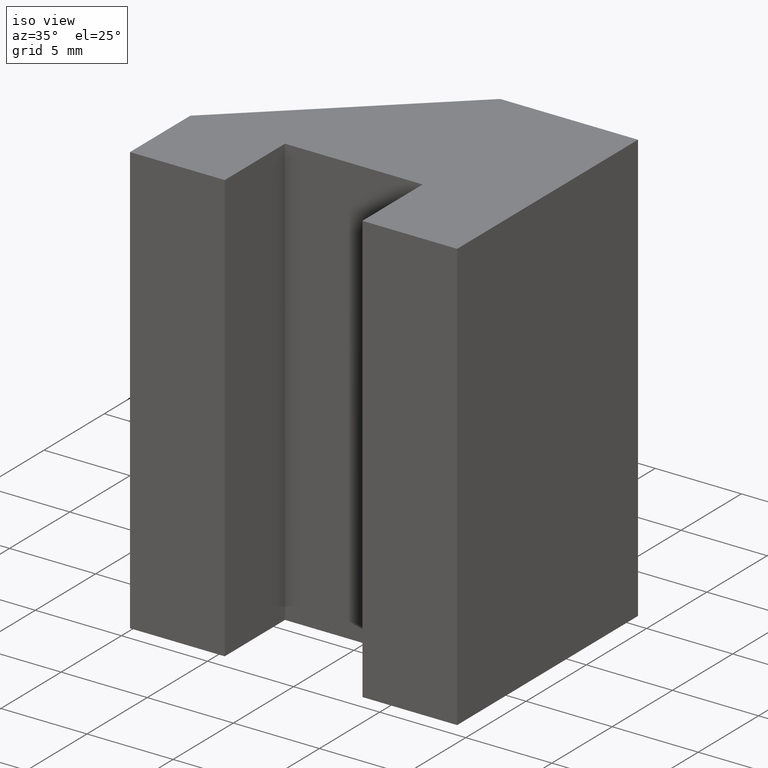
[diagram: clean part render]
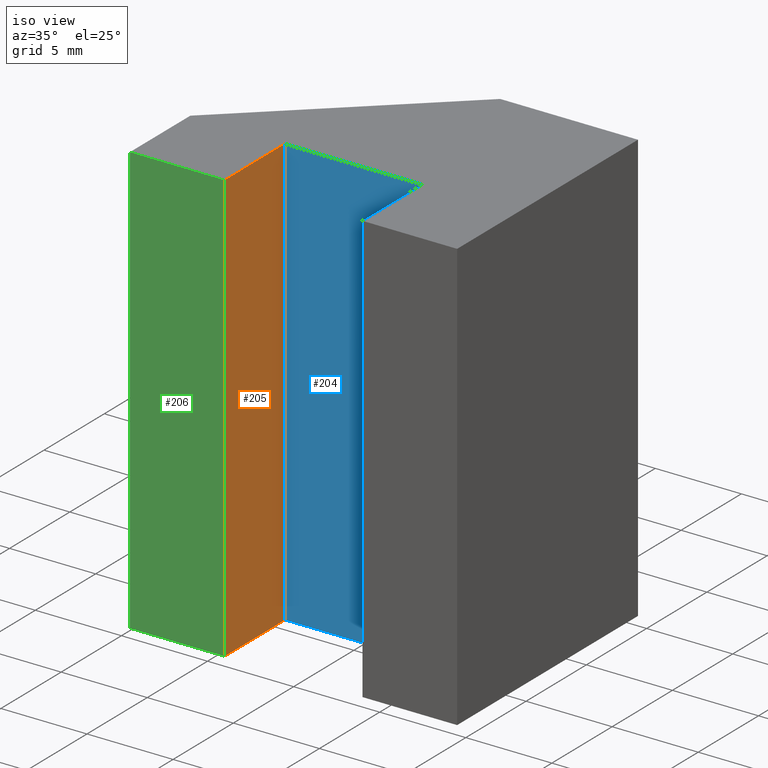
[diagram: same view with three faces highlighted in distinct colors, each labeled with its STEP entity id]
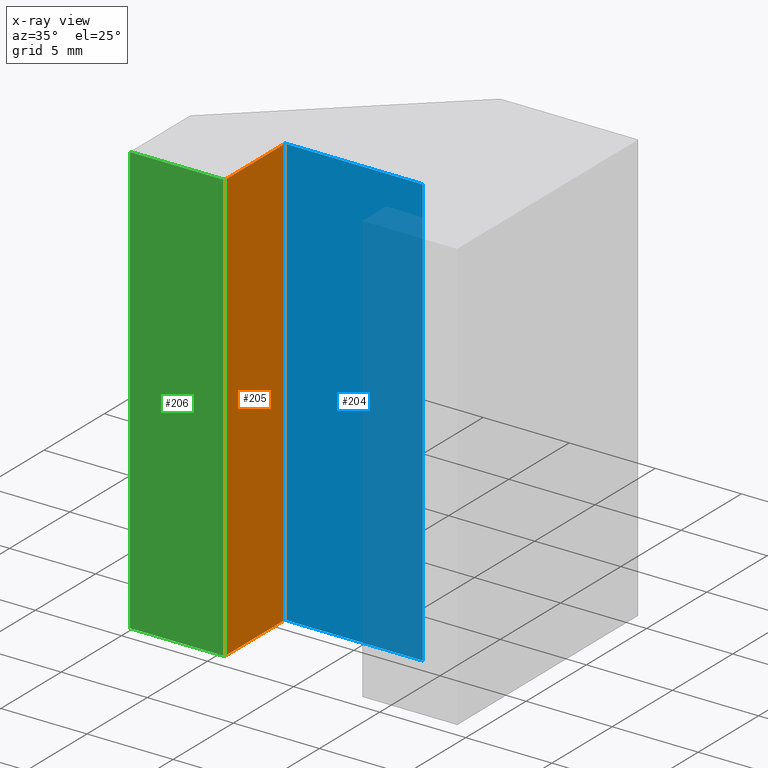
[diagram: x-ray of the same camera — body ghosted, the three highlighted faces saturated]
A machine part, iso view with three faces highlighted in distinct colors.
The next image is the same camera in x-ray (body ghosted, the three faces saturated) — at least one of them is partly hidden behind the body in this view.
Their STEP definitions:

[orange] entity #205 — the highlighted planar face has unit normal (1, 0, 0).
#19=FACE_OUTER_BOUND('',#30,.T.);
#30=EDGE_LOOP('',(#154,#155,#156,#157));
#42=LINE('',#310,#69);
#51=LINE('',#327,#78);
#52=LINE('',#330,#79);
#53=LINE('',#331,#80);
#69=VECTOR('',#255,10.);
#78=VECTOR('',#268,10.);
#79=VECTOR('',#271,10.);
#80=VECTOR('',#272,10.);
#96=VERTEX_POINT('',#307);
#97=VERTEX_POINT('',#309);
#103=VERTEX_POINT('',#325);
#104=VERTEX_POINT('',#329);
#114=EDGE_CURVE('',#97,#96,#42,.T.);
#123=EDGE_CURVE('',#103,#96,#51,.T.);
#124=EDGE_CURVE('',#103,#104,#52,.T.);
#125=EDGE_CURVE('',#104,#97,#53,.T.);
#154=ORIENTED_EDGE('',*,*,#124,.T.);
#155=ORIENTED_EDGE('',*,*,#125,.T.);
#156=ORIENTED_EDGE('',*,*,#114,.T.);
#157=ORIENTED_EDGE('',*,*,#123,.F.);
#194=PLANE('',#239);
#205=ADVANCED_FACE('',(#19),#194,.T.);
#239=AXIS2_PLACEMENT_3D('',#328,#269,#270);
#255=DIRECTION('',(-4.44089209850063E-16,1.,0.));
#268=DIRECTION('',(0.,0.,-1.));
#269=DIRECTION('center_axis',(1.,4.44089209850063E-16,0.));
#270=DIRECTION('ref_axis',(0.,0.,-1.));
#271=DIRECTION('',(4.44089209850063E-16,-1.,0.));
#272=DIRECTION('',(0.,0.,-1.));
#307=CARTESIAN_POINT('',(-4.,-4.93514381691475E-16,-12.5));
#309=CARTESIAN_POINT('',(-4.,-5.,-12.5));
#310=CARTESIAN_POINT('',(-4.,-4.93514381691475E-16,-12.5));
#325=CARTESIAN_POINT('',(-4.,-4.93514381691475E-16,12.5));
#327=CARTESIAN_POINT('',(-4.,-4.93514381691475E-16,0.));
#328=CARTESIAN_POINT('Origin',(-4.,-4.93514381691475E-16,0.));
#329=CARTESIAN_POINT('',(-4.,-5.,12.5));
#330=CARTESIAN_POINT('',(-4.,-4.93514381691475E-16,12.5));
#331=CARTESIAN_POINT('',(-4.,-5.,0.));

[blue] entity #204 — the highlighted planar face has unit normal (0, -1, 0).
#18=FACE_OUTER_BOUND('',#29,.T.);
#29=EDGE_LOOP('',(#150,#151,#152,#153));
#41=LINE('',#308,#68);
#48=LINE('',#322,#75);
#50=LINE('',#326,#77);
#51=LINE('',#327,#78);
#68=VECTOR('',#254,10.);
#75=VECTOR('',#263,10.);
#77=VECTOR('',#267,10.);
#78=VECTOR('',#268,10.);
#95=VERTEX_POINT('',#305);
#96=VERTEX_POINT('',#307);
#102=VERTEX_POINT('',#320);
#103=VERTEX_POINT('',#325);
#113=EDGE_CURVE('',#96,#95,#41,.T.);
#120=EDGE_CURVE('',#102,#95,#48,.T.);
#122=EDGE_CURVE('',#102,#103,#50,.T.);
#123=EDGE_CURVE('',#103,#96,#51,.T.);
#150=ORIENTED_EDGE('',*,*,#122,.T.);
#151=ORIENTED_EDGE('',*,*,#123,.T.);
#152=ORIENTED_EDGE('',*,*,#113,.T.);
#153=ORIENTED_EDGE('',*,*,#120,.F.);
#193=PLANE('',#238);
#204=ADVANCED_FACE('',(#18),#193,.T.);
#238=AXIS2_PLACEMENT_3D('',#324,#265,#266);
#254=DIRECTION('',(1.,0.,0.));
#263=DIRECTION('',(0.,0.,-1.));
#265=DIRECTION('center_axis',(0.,-1.,0.));
#266=DIRECTION('ref_axis',(0.,0.,-1.));
#267=DIRECTION('',(-1.,0.,0.));
#268=DIRECTION('',(0.,0.,-1.));
#305=CARTESIAN_POINT('',(4.,-4.93514381691475E-16,-12.5));
#307=CARTESIAN_POINT('',(-4.,-4.93514381691475E-16,-12.5));
#308=CARTESIAN_POINT('',(4.,-4.93514381691475E-16,-12.5));
#320=CARTESIAN_POINT('',(4.,-4.93514381691475E-16,12.5));
#322=CARTESIAN_POINT('',(4.,-4.93514381691475E-16,0.));
#324=CARTESIAN_POINT('Origin',(4.,-4.93514381691475E-16,0.));
#325=CARTESIAN_POINT('',(-4.,-4.93514381691475E-16,12.5));
#326=CARTESIAN_POINT('',(4.,-4.93514381691475E-16,12.5));
#327=CARTESIAN_POINT('',(-4.,-4.93514381691475E-16,0.));

[green] entity #206 — the highlighted planar face has unit normal (0, -1, 0).
#20=FACE_OUTER_BOUND('',#31,.T.);
#31=EDGE_LOOP('',(#158,#159,#160,#161));
#43=LINE('',#312,#70);
#53=LINE('',#331,#80);
#54=LINE('',#334,#81);
#55=LINE('',#335,#82);
#70=VECTOR('',#256,10.);
#80=VECTOR('',#272,10.);
#81=VECTOR('',#275,10.);
#82=VECTOR('',#276,10.);
#97=VERTEX_POINT('',#309);
#98=VERTEX_POINT('',#311);
#104=VERTEX_POINT('',#329);
#105=VERTEX_POINT('',#333);
#115=EDGE_CURVE('',#98,#97,#43,.T.);
#125=EDGE_CURVE('',#104,#97,#53,.T.);
#126=EDGE_CURVE('',#104,#105,#54,.T.);
#127=EDGE_CURVE('',#105,#98,#55,.T.);
#158=ORIENTED_EDGE('',*,*,#126,.T.);
#159=ORIENTED_EDGE('',*,*,#127,.T.);
#160=ORIENTED_EDGE('',*,*,#115,.T.);
#161=ORIENTED_EDGE('',*,*,#125,.F.);
#195=PLANE('',#240);
#206=ADVANCED_FACE('',(#20),#195,.T.);
#240=AXIS2_PLACEMENT_3D('',#332,#273,#274);
#256=DIRECTION('',(1.,1.00929365875014E-16,0.));
#272=DIRECTION('',(0.,0.,-1.));
#273=DIRECTION('center_axis',(1.00929365875014E-16,-1.,0.));
#274=DIRECTION('ref_axis',(0.,0.,-1.));
#275=DIRECTION('',(-1.,-1.00929365875014E-16,0.));
#276=DIRECTION('',(0.,0.,-1.));
#309=CARTESIAN_POINT('',(-4.,-5.,-12.5));
#311=CARTESIAN_POINT('',(-9.5,-5.,-12.5));
#312=CARTESIAN_POINT('',(-4.,-5.,-12.5));
#329=CARTESIAN_POINT('',(-4.,-5.,12.5));
#331=CARTESIAN_POINT('',(-4.,-5.,0.));
#332=CARTESIAN_POINT('Origin',(-4.,-5.,0.));
#333=CARTESIAN_POINT('',(-9.5,-5.,12.5));
#334=CARTESIAN_POINT('',(-4.,-5.,12.5));
#335=CARTESIAN_POINT('',(-9.5,-5.,0.));